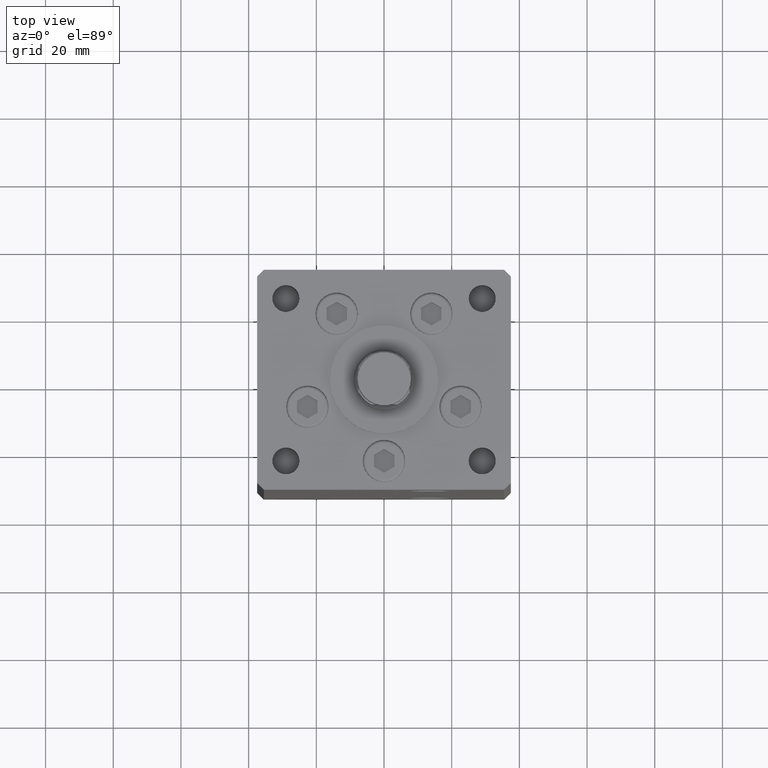
[diagram: clean part render]
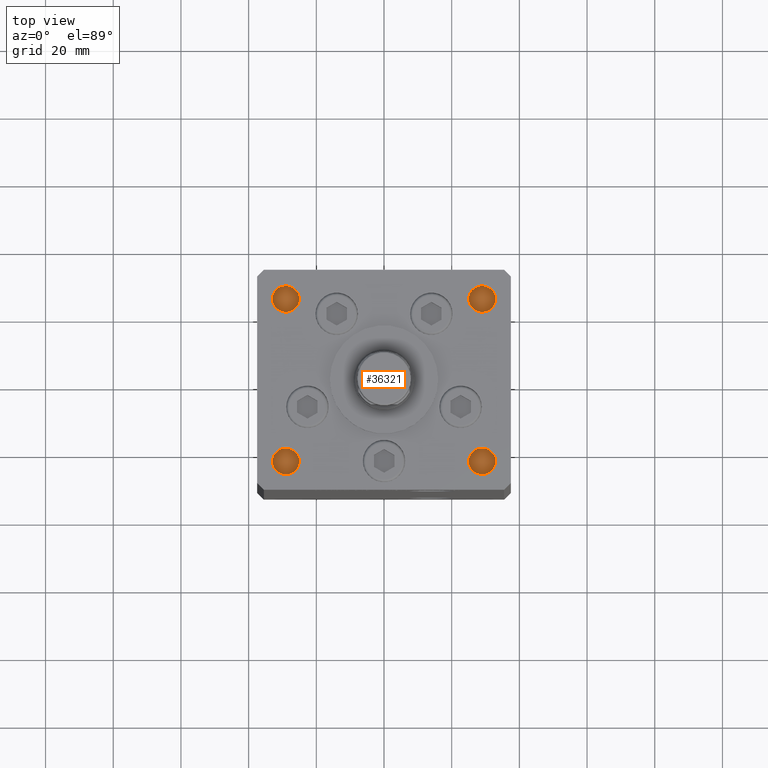
[diagram: same view with one face highlighted and labeled with its STEP entity id]
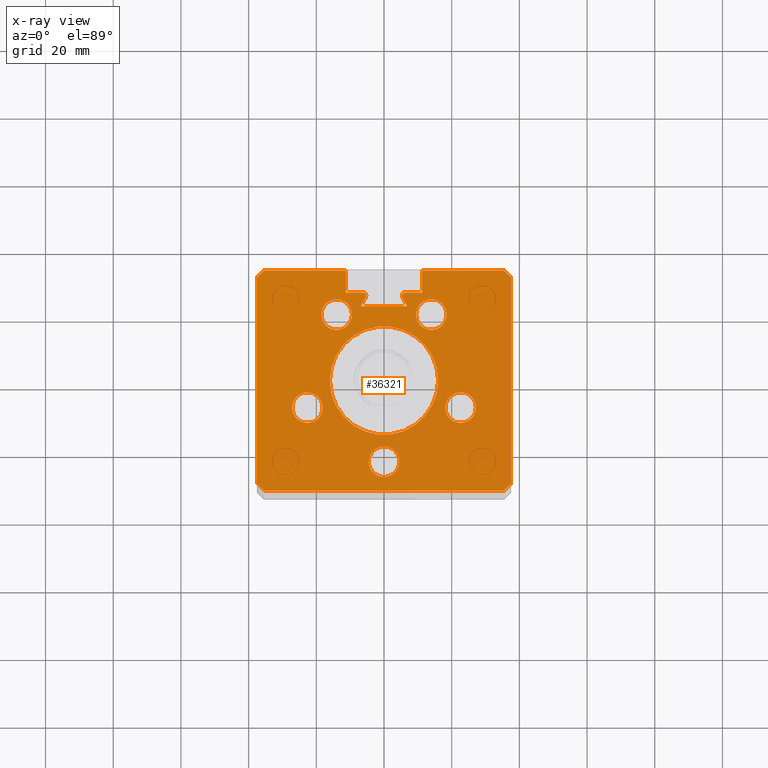
[diagram: x-ray of the same camera — body ghosted, the highlighted face saturated]
A machine part, top view. The second image highlights one B-rep face of the part: STEP entity #36321.
The next image is the same camera in x-ray: the body ghosted, the highlighted face saturated — about 0% of this face is hidden behind the body in this view.
In plain terms, the highlighted planar face has unit normal (0, 0, -1).
Its self-contained STEP definition (entity closure, byte-faithful):
#407 = CARTESIAN_POINT ( 'NONE',  ( -35.49999999999999289, -32.50000000000000000, 138.0000000000000000 ) ) ;
#684 = CIRCLE ( 'NONE', #36402, 4.499999999999997335 ) ;
#720 = CIRCLE ( 'NONE', #6662, 4.499999999999997335 ) ;
#944 = VECTOR ( 'NONE', #9635, 1000.000000000000000 ) ;
#988 = CARTESIAN_POINT ( 'NONE',  ( -37.49999999999999289, -30.50000000000000000, 138.0000000000000000 ) ) ;
#1321 = CARTESIAN_POINT ( 'NONE',  ( 0.000000000000000000, -24.00000000000000000, 138.0000000000000000 ) ) ;
#1369 = ORIENTED_EDGE ( 'NONE', *, *, #14141, .F. ) ;
#1952 = PLANE ( 'NONE',  #3357 ) ;
#1969 = DIRECTION ( 'NONE',  ( 0.000000000000000000, 0.000000000000000000, 1.000000000000000000 ) ) ;
#2273 = CARTESIAN_POINT ( 'NONE',  ( 0.000000000000000000, 25.99999999999999289, 138.0000000000000000 ) ) ;
#2589 = ORIENTED_EDGE ( 'NONE', *, *, #12013, .T. ) ;
#2596 = VERTEX_POINT ( 'NONE', #45633 ) ;
#2802 = CARTESIAN_POINT ( 'NONE',  ( -11.25000000000000178, 25.99999999999999289, 138.0000000000000000 ) ) ;
#2958 = ORIENTED_EDGE ( 'NONE', *, *, #31357, .F. ) ;
#3102 = AXIS2_PLACEMENT_3D ( 'NONE', #26254, #47601, #35047 ) ;
#3357 = AXIS2_PLACEMENT_3D ( 'NONE', #43259, #22469, #38725 ) ;
#3436 = EDGE_LOOP ( 'NONE', ( #1369, #6415 ) ) ;
#3634 = CARTESIAN_POINT ( 'NONE',  ( 0.000000000000000000, 0.000000000000000000, 138.0000000000000000 ) ) ;
#3905 = ORIENTED_EDGE ( 'NONE', *, *, #18652, .F. ) ;
#3967 = CARTESIAN_POINT ( 'NONE',  ( -27.12741699796952233, -8.000000000000000000, 138.0000000000000000 ) ) ;
#4201 = DIRECTION ( 'NONE',  ( 0.7071067811865474617, -0.7071067811865474617, 0.000000000000000000 ) ) ;
#4388 = EDGE_LOOP ( 'NONE', ( #27207, #10874 ) ) ;
#4476 = DIRECTION ( 'NONE',  ( -0.000000000000000000, 0.000000000000000000, 1.000000000000000000 ) ) ;
#4497 = CARTESIAN_POINT ( 'NONE',  ( -16.00000000000000000, 0.000000000000000000, 138.0000000000000000 ) ) ;
#4501 = AXIS2_PLACEMENT_3D ( 'NONE', #20648, #36910, #31610 ) ;
#4571 = AXIS2_PLACEMENT_3D ( 'NONE', #9257, #4476, #25774 ) ;
#4976 = VERTEX_POINT ( 'NONE', #43946 ) ;
#5035 = EDGE_CURVE ( 'NONE', #37393, #42152, #38476, .T. ) ;
#5096 = ORIENTED_EDGE ( 'NONE', *, *, #32469, .F. ) ;
#5516 = LINE ( 'NONE', #49780, #43775 ) ;
#5817 = EDGE_CURVE ( 'NONE', #19272, #7182, #38511, .T. ) ;
#6227 = CARTESIAN_POINT ( 'NONE',  ( 13.99106857963322170, 19.50000000000000000, 138.0000000000000000 ) ) ;
#6387 = DIRECTION ( 'NONE',  ( 0.000000000000000000, 0.000000000000000000, 1.000000000000000000 ) ) ;
#6412 = AXIS2_PLACEMENT_3D ( 'NONE', #6227, #1969, #42214 ) ;
#6415 = ORIENTED_EDGE ( 'NONE', *, *, #5817, .F. ) ;
#6473 = VERTEX_POINT ( 'NONE', #23224 ) ;
#6531 = DIRECTION ( 'NONE',  ( -1.000000000000000000, 0.000000000000000000, 0.000000000000000000 ) ) ;
#6662 = AXIS2_PLACEMENT_3D ( 'NONE', #47802, #28298, #36033 ) ;
#6694 = ORIENTED_EDGE ( 'NONE', *, *, #29539, .T. ) ;
#6740 = VECTOR ( 'NONE', #4201, 1000.000000000000114 ) ;
#6776 = EDGE_CURVE ( 'NONE', #35867, #50076, #31736, .T. ) ;
#7030 = CARTESIAN_POINT ( 'NONE',  ( 11.25000000000000178, 0.000000000000000000, 138.0000000000000000 ) ) ;
#7182 = VERTEX_POINT ( 'NONE', #13125 ) ;
#7400 = CARTESIAN_POINT ( 'NONE',  ( -5.375042956467946276, 24.59999999999899245, 138.0000000000000000 ) ) ;
#7402 = EDGE_CURVE ( 'NONE', #24320, #29420, #40271, .T. ) ;
#7431 = ORIENTED_EDGE ( 'NONE', *, *, #45583, .T. ) ;
#7557 = CARTESIAN_POINT ( 'NONE',  ( -6.183333333334001480, 25.06666666666599141, 138.0000000000000000 ) ) ;
#7888 = VECTOR ( 'NONE', #33146, 1000.000000000000114 ) ;
#8259 = DIRECTION ( 'NONE',  ( 1.000000000000000000, 0.000000000000000000, 0.000000000000000000 ) ) ;
#8761 = ORIENTED_EDGE ( 'NONE', *, *, #40909, .T. ) ;
#8851 = CARTESIAN_POINT ( 'NONE',  ( -11.25000000000000178, 32.49999999999999289, 138.0000000000000000 ) ) ;
#9163 = CARTESIAN_POINT ( 'NONE',  ( -35.50000000000000000, 32.49999999999999289, 138.0000000000000000 ) ) ;
#9257 = CARTESIAN_POINT ( 'NONE',  ( 0.000000000000000000, 0.000000000000000000, 138.0000000000000000 ) ) ;
#9445 = CARTESIAN_POINT ( 'NONE',  ( 6.876153656360466826, 21.99999999999986855, 138.0000000000000000 ) ) ;
#9614 = EDGE_LOOP ( 'NONE', ( #29637, #42181 ) ) ;
#9635 = DIRECTION ( 'NONE',  ( 1.000000000000000000, 0.000000000000000000, 0.000000000000000000 ) ) ;
#9664 = EDGE_CURVE ( 'NONE', #32170, #38801, #11044, .T. ) ;
#9719 = VERTEX_POINT ( 'NONE', #2802 ) ;
#9739 = VECTOR ( 'NONE', #10060, 1000.000000000000000 ) ;
#9751 = ORIENTED_EDGE ( 'NONE', *, *, #22356, .T. ) ;
#9938 = FACE_BOUND ( 'NONE', #3436, .T. ) ;
#10060 = DIRECTION ( 'NONE',  ( 0.4999999999999996114, 0.8660254037844388186, 0.000000000000000000 ) ) ;
#10736 = FACE_BOUND ( 'NONE', #37413, .T. ) ;
#10810 = CARTESIAN_POINT ( 'NONE',  ( -11.25000000000000178, 32.49999999999999289, 138.0000000000000000 ) ) ;
#10874 = ORIENTED_EDGE ( 'NONE', *, *, #16318, .F. ) ;
#10882 = VERTEX_POINT ( 'NONE', #40360 ) ;
#10968 = DIRECTION ( 'NONE',  ( 1.000000000000000000, 0.000000000000000000, 0.000000000000000000 ) ) ;
#11044 = LINE ( 'NONE', #27820, #44416 ) ;
#11393 = CARTESIAN_POINT ( 'NONE',  ( 4.500000000000000000, -24.00000000000000000, 138.0000000000000000 ) ) ;
#11604 = VECTOR ( 'NONE', #13417, 1000.000000000000000 ) ;
#11719 = VERTEX_POINT ( 'NONE', #13935 ) ;
#12013 = EDGE_CURVE ( 'NONE', #38801, #17335, #18653, .T. ) ;
#12084 = VERTEX_POINT ( 'NONE', #4497 ) ;
#12625 = LINE ( 'NONE', #17675, #11604 ) ;
#12768 = ORIENTED_EDGE ( 'NONE', *, *, #30805, .F. ) ;
#12837 = ORIENTED_EDGE ( 'NONE', *, *, #38944, .F. ) ;
#13105 = VERTEX_POINT ( 'NONE', #11393 ) ;
#13125 = CARTESIAN_POINT ( 'NONE',  ( 27.12741699796952233, -8.000000000000000000, 138.0000000000000000 ) ) ;
#13211 = VERTEX_POINT ( 'NONE', #42536 ) ;
#13417 = DIRECTION ( 'NONE',  ( -1.000000000000000000, 0.000000000000000000, 0.000000000000000000 ) ) ;
#13483 = EDGE_CURVE ( 'NONE', #24320, #52120, #29150, .T. ) ;
#13565 = DIRECTION ( 'NONE',  ( 1.000000000000000000, 0.000000000000000000, 0.000000000000000000 ) ) ;
#13615 = CARTESIAN_POINT ( 'NONE',  ( -35.50000000000000000, 32.49999999999999289, 138.0000000000000000 ) ) ;
#13935 = CARTESIAN_POINT ( 'NONE',  ( 11.24999999999999467, 32.49999999999999289, 138.0000000000000000 ) ) ;
#14093 = CARTESIAN_POINT ( 'NONE',  ( -6.876153656360466826, 21.99999999999986855, 138.0000000000000000 ) ) ;
#14141 = EDGE_CURVE ( 'NONE', #7182, #19272, #15571, .T. ) ;
#14425 = CARTESIAN_POINT ( 'NONE',  ( -37.49999999999999289, -30.50000000000000000, 138.0000000000000000 ) ) ;
#14494 = EDGE_LOOP ( 'NONE', ( #16893, #51810 ) ) ;
#14906 = ORIENTED_EDGE ( 'NONE', *, *, #13483, .T. ) ;
#15261 = EDGE_LOOP ( 'NONE', ( #7431, #33311, #25682, #14906, #22985, #8761, #20009, #2958, #50449, #5096, #21853, #16082, #6694, #3905, #23378, #2589, #9751, #46702, #12837 ) ) ;
#15282 = DIRECTION ( 'NONE',  ( -0.000000000000000000, -1.000000000000000000, 0.000000000000000000 ) ) ;
#15498 = AXIS2_PLACEMENT_3D ( 'NONE', #43679, #51697, #36452 ) ;
#15571 = CIRCLE ( 'NONE', #52192, 4.500000000000000888 ) ;
#16082 = ORIENTED_EDGE ( 'NONE', *, *, #38036, .T. ) ;
#16086 = EDGE_CURVE ( 'NONE', #12084, #10882, #24957, .T. ) ;
#16172 = ORIENTED_EDGE ( 'NONE', *, *, #16086, .F. ) ;
#16256 = EDGE_CURVE ( 'NONE', #4976, #26732, #36027, .T. ) ;
#16318 = EDGE_CURVE ( 'NONE', #46203, #13105, #51402, .T. ) ;
#16391 = DIRECTION ( 'NONE',  ( 0.000000000000000000, 0.000000000000000000, -1.000000000000000000 ) ) ;
#16893 = ORIENTED_EDGE ( 'NONE', *, *, #34562, .F. ) ;
#17057 = CARTESIAN_POINT ( 'NONE',  ( 35.50000000000000000, 32.49999999999999289, 138.0000000000000000 ) ) ;
#17335 = VERTEX_POINT ( 'NONE', #14093 ) ;
#17517 = EDGE_CURVE ( 'NONE', #17904, #33056, #5516, .T. ) ;
#17675 = CARTESIAN_POINT ( 'NONE',  ( 0.000000000000000000, 25.99999999999999289, 138.0000000000000000 ) ) ;
#17904 = VERTEX_POINT ( 'NONE', #407 ) ;
#18201 = AXIS2_PLACEMENT_3D ( 'NONE', #39989, #27459, #8259 ) ;
#18203 = FACE_BOUND ( 'NONE', #4388, .T. ) ;
#18652 = EDGE_CURVE ( 'NONE', #32170, #2596, #27636, .T. ) ;
#18653 = LINE ( 'NONE', #43973, #39360 ) ;
#18894 = DIRECTION ( 'NONE',  ( -0.7071067811865474617, -0.7071067811865474617, 0.000000000000000000 ) ) ;
#19233 = CARTESIAN_POINT ( 'NONE',  ( -11.25000000000000178, 32.49999999999999289, 138.0000000000000000 ) ) ;
#19272 = VERTEX_POINT ( 'NONE', #26989 ) ;
#20009 = ORIENTED_EDGE ( 'NONE', *, *, #17517, .T. ) ;
#20014 = CIRCLE ( 'NONE', #6412, 4.500000000000003553 ) ;
#20233 = VECTOR ( 'NONE', #37859, 1000.000000000000114 ) ;
#20535 = LINE ( 'NONE', #48822, #20954 ) ;
#20648 = CARTESIAN_POINT ( 'NONE',  ( 13.99106857963322170, 19.50000000000000000, 138.0000000000000000 ) ) ;
#20884 = LINE ( 'NONE', #44363, #49746 ) ;
#20954 = VECTOR ( 'NONE', #44553, 1000.000000000000000 ) ;
#21095 = EDGE_CURVE ( 'NONE', #50076, #35867, #20014, .T. ) ;
#21531 = LINE ( 'NONE', #25792, #9739 ) ;
#21853 = ORIENTED_EDGE ( 'NONE', *, *, #43498, .F. ) ;
#22281 = VECTOR ( 'NONE', #6531, 1000.000000000000000 ) ;
#22356 = EDGE_CURVE ( 'NONE', #17335, #26732, #21531, .T. ) ;
#22469 = DIRECTION ( 'NONE',  ( 0.000000000000000000, 0.000000000000000000, -1.000000000000000000 ) ) ;
#22816 = EDGE_CURVE ( 'NONE', #45408, #31684, #20884, .T. ) ;
#22924 = DIRECTION ( 'NONE',  ( -1.000000000000000000, 0.000000000000000000, 0.000000000000000000 ) ) ;
#22985 = ORIENTED_EDGE ( 'NONE', *, *, #37008, .T. ) ;
#23224 = CARTESIAN_POINT ( 'NONE',  ( 11.25000000000000178, 25.99999999999999289, 138.0000000000000000 ) ) ;
#23329 = CARTESIAN_POINT ( 'NONE',  ( -37.50000000000000711, 30.50000000000000000, 138.0000000000000000 ) ) ;
#23378 = ORIENTED_EDGE ( 'NONE', *, *, #9664, .T. ) ;
#23553 = DIRECTION ( 'NONE',  ( 1.000000000000000000, 0.000000000000000000, 0.000000000000000000 ) ) ;
#24131 = AXIS2_PLACEMENT_3D ( 'NONE', #43990, #39729, #31464 ) ;
#24141 = CARTESIAN_POINT ( 'NONE',  ( 6.183333333334001480, 25.06666666666599141, 138.0000000000000000 ) ) ;
#24320 = VERTEX_POINT ( 'NONE', #13615 ) ;
#24638 = CIRCLE ( 'NONE', #46693, 4.500000000000000000 ) ;
#24709 = DIRECTION ( 'NONE',  ( 1.000000000000000000, 0.000000000000000000, 0.000000000000000000 ) ) ;
#24957 = CIRCLE ( 'NONE', #4571, 16.00000000000000000 ) ;
#25632 = CARTESIAN_POINT ( 'NONE',  ( -37.50000000000000711, 30.50000000000000000, 138.0000000000000000 ) ) ;
#25682 = ORIENTED_EDGE ( 'NONE', *, *, #7402, .F. ) ;
#25774 = DIRECTION ( 'NONE',  ( 1.000000000000000000, 0.000000000000000000, 0.000000000000000000 ) ) ;
#25792 = CARTESIAN_POINT ( 'NONE',  ( -14.68339468389911495, 8.477461873366666012, 138.0000000000000000 ) ) ;
#26057 = CIRCLE ( 'NONE', #3102, 4.500000000000000888 ) ;
#26188 = FACE_BOUND ( 'NONE', #28222, .T. ) ;
#26254 = CARTESIAN_POINT ( 'NONE',  ( -22.62741699796951877, -8.000000000000000000, 138.0000000000000000 ) ) ;
#26665 = VERTEX_POINT ( 'NONE', #52185 ) ;
#26732 = VERTEX_POINT ( 'NONE', #7400 ) ;
#26954 = CARTESIAN_POINT ( 'NONE',  ( 22.62741699796951877, -8.000000000000000000, 138.0000000000000000 ) ) ;
#26989 = CARTESIAN_POINT ( 'NONE',  ( 18.12741699796951877, -8.000000000000000000, 138.0000000000000000 ) ) ;
#27207 = ORIENTED_EDGE ( 'NONE', *, *, #38244, .F. ) ;
#27252 = DIRECTION ( 'NONE',  ( 0.000000000000000000, 0.000000000000000000, 1.000000000000000000 ) ) ;
#27459 = DIRECTION ( 'NONE',  ( 0.000000000000000000, 0.000000000000000000, -1.000000000000000000 ) ) ;
#27585 = EDGE_CURVE ( 'NONE', #9719, #29420, #20535, .T. ) ;
#27626 = CARTESIAN_POINT ( 'NONE',  ( 37.49999999999999289, -30.50000000000000000, 138.0000000000000000 ) ) ;
#27636 = CIRCLE ( 'NONE', #33554, 0.9333333333340008142 ) ;
#27820 = CARTESIAN_POINT ( 'NONE',  ( 14.68339468389911850, 8.477461873366667788, 138.0000000000000000 ) ) ;
#27880 = CARTESIAN_POINT ( 'NONE',  ( 37.50000000000000711, 30.50000000000000000, 138.0000000000000000 ) ) ;
#28124 = DIRECTION ( 'NONE',  ( 1.000000000000000000, 0.000000000000000000, 0.000000000000000000 ) ) ;
#28149 = CARTESIAN_POINT ( 'NONE',  ( 35.49999999999999289, -32.50000000000000000, 138.0000000000000000 ) ) ;
#28222 = EDGE_LOOP ( 'NONE', ( #16172, #12768 ) ) ;
#28274 = CARTESIAN_POINT ( 'NONE',  ( 5.375042956467948052, 24.59999999999899245, 138.0000000000000000 ) ) ;
#28292 = EDGE_CURVE ( 'NONE', #42152, #37393, #26057, .T. ) ;
#28298 = DIRECTION ( 'NONE',  ( 0.000000000000000000, 0.000000000000000000, 1.000000000000000000 ) ) ;
#28716 = VECTOR ( 'NONE', #18894, 1000.000000000000114 ) ;
#29150 = LINE ( 'NONE', #9163, #7888 ) ;
#29420 = VERTEX_POINT ( 'NONE', #10810 ) ;
#29539 = EDGE_CURVE ( 'NONE', #6473, #2596, #12625, .T. ) ;
#29637 = ORIENTED_EDGE ( 'NONE', *, *, #21095, .F. ) ;
#30453 = FACE_OUTER_BOUND ( 'NONE', #15261, .T. ) ;
#30576 = CARTESIAN_POINT ( 'NONE',  ( 9.491068579633218150, 19.50000000000000000, 138.0000000000000000 ) ) ;
#30805 = EDGE_CURVE ( 'NONE', #10882, #12084, #32932, .T. ) ;
#31213 = DIRECTION ( 'NONE',  ( 1.000000000000000000, 0.000000000000000000, 0.000000000000000000 ) ) ;
#31357 = EDGE_CURVE ( 'NONE', #31684, #33056, #40206, .T. ) ;
#31464 = DIRECTION ( 'NONE',  ( 1.000000000000000000, 0.000000000000000000, 0.000000000000000000 ) ) ;
#31610 = DIRECTION ( 'NONE',  ( 1.000000000000000000, 0.000000000000000000, 0.000000000000000000 ) ) ;
#31684 = VERTEX_POINT ( 'NONE', #27626 ) ;
#31736 = CIRCLE ( 'NONE', #4501, 4.500000000000003553 ) ;
#32170 = VERTEX_POINT ( 'NONE', #28274 ) ;
#32469 = EDGE_CURVE ( 'NONE', #13211, #45408, #45864, .T. ) ;
#32932 = CIRCLE ( 'NONE', #47439, 16.00000000000000000 ) ;
#33056 = VERTEX_POINT ( 'NONE', #28149 ) ;
#33146 = DIRECTION ( 'NONE',  ( -0.7071067811865500152, -0.7071067811865451302, 0.000000000000000000 ) ) ;
#33311 = ORIENTED_EDGE ( 'NONE', *, *, #27585, .T. ) ;
#33554 = AXIS2_PLACEMENT_3D ( 'NONE', #24141, #16391, #51894 ) ;
#33670 = EDGE_CURVE ( 'NONE', #38145, #42248, #684, .T. ) ;
#33819 = DIRECTION ( 'NONE',  ( 0.000000000000000000, 0.000000000000000000, 1.000000000000000000 ) ) ;
#34562 = EDGE_CURVE ( 'NONE', #42248, #38145, #720, .T. ) ;
#34622 = DIRECTION ( 'NONE',  ( 1.000000000000000000, 0.000000000000000000, 0.000000000000000000 ) ) ;
#34925 = CARTESIAN_POINT ( 'NONE',  ( -4.500000000000000000, -24.00000000000000000, 138.0000000000000000 ) ) ;
#35031 = LINE ( 'NONE', #2273, #22281 ) ;
#35047 = DIRECTION ( 'NONE',  ( 1.000000000000000000, 0.000000000000000000, 0.000000000000000000 ) ) ;
#35753 = ORIENTED_EDGE ( 'NONE', *, *, #28292, .F. ) ;
#35867 = VERTEX_POINT ( 'NONE', #30576 ) ;
#36027 = CIRCLE ( 'NONE', #18201, 0.9333333333340008142 ) ;
#36033 = DIRECTION ( 'NONE',  ( 1.000000000000000000, 0.000000000000000000, 0.000000000000000000 ) ) ;
#36321 = ADVANCED_FACE ( 'NONE', ( #10736, #18203, #9938, #50997, #39242, #30453, #26188 ), #1952, .F. ) ;
#36402 = AXIS2_PLACEMENT_3D ( 'NONE', #43781, #27252, #52305 ) ;
#36452 = DIRECTION ( 'NONE',  ( 1.000000000000000000, 0.000000000000000000, 0.000000000000000000 ) ) ;
#36910 = DIRECTION ( 'NONE',  ( 0.000000000000000000, 0.000000000000000000, 1.000000000000000000 ) ) ;
#37008 = EDGE_CURVE ( 'NONE', #52120, #47988, #51067, .T. ) ;
#37393 = VERTEX_POINT ( 'NONE', #45346 ) ;
#37413 = EDGE_LOOP ( 'NONE', ( #47204, #35753 ) ) ;
#37669 = AXIS2_PLACEMENT_3D ( 'NONE', #42896, #6387, #34622 ) ;
#37859 = DIRECTION ( 'NONE',  ( 0.7071067811865500152, -0.7071067811865451302, 0.000000000000000000 ) ) ;
#38036 = EDGE_CURVE ( 'NONE', #11719, #6473, #39805, .T. ) ;
#38145 = VERTEX_POINT ( 'NONE', #51030 ) ;
#38153 = LINE ( 'NONE', #8851, #944 ) ;
#38244 = EDGE_CURVE ( 'NONE', #13105, #46203, #24638, .T. ) ;
#38476 = CIRCLE ( 'NONE', #15498, 4.500000000000000888 ) ;
#38511 = CIRCLE ( 'NONE', #37669, 4.500000000000000888 ) ;
#38725 = DIRECTION ( 'NONE',  ( -1.000000000000000000, 0.000000000000000000, -0.000000000000000000 ) ) ;
#38801 = VERTEX_POINT ( 'NONE', #9445 ) ;
#38944 = EDGE_CURVE ( 'NONE', #26665, #4976, #52659, .T. ) ;
#39040 = AXIS2_PLACEMENT_3D ( 'NONE', #7557, #43552, #23553 ) ;
#39200 = DIRECTION ( 'NONE',  ( 0.000000000000000000, 0.000000000000000000, 1.000000000000000000 ) ) ;
#39242 = FACE_BOUND ( 'NONE', #14494, .T. ) ;
#39360 = VECTOR ( 'NONE', #22924, 1000.000000000000000 ) ;
#39583 = DIRECTION ( 'NONE',  ( 2.275047181608927644E-16, -1.000000000000000000, 0.000000000000000000 ) ) ;
#39729 = DIRECTION ( 'NONE',  ( 0.000000000000000000, 0.000000000000000000, 1.000000000000000000 ) ) ;
#39805 = LINE ( 'NONE', #7030, #51079 ) ;
#39989 = CARTESIAN_POINT ( 'NONE',  ( -6.183333333334001480, 25.06666666666599141, 138.0000000000000000 ) ) ;
#40206 = LINE ( 'NONE', #51443, #28716 ) ;
#40271 = LINE ( 'NONE', #19233, #52196 ) ;
#40360 = CARTESIAN_POINT ( 'NONE',  ( 16.00000000000000000, 1.959434878635765131E-15, 138.0000000000000000 ) ) ;
#40707 = LINE ( 'NONE', #988, #6740 ) ;
#40909 = EDGE_CURVE ( 'NONE', #47988, #17904, #40707, .T. ) ;
#41894 = CARTESIAN_POINT ( 'NONE',  ( 18.49106857963322526, 19.50000000000000000, 138.0000000000000000 ) ) ;
#42152 = VERTEX_POINT ( 'NONE', #3967 ) ;
#42181 = ORIENTED_EDGE ( 'NONE', *, *, #6776, .F. ) ;
#42214 = DIRECTION ( 'NONE',  ( 1.000000000000000000, 0.000000000000000000, 0.000000000000000000 ) ) ;
#42248 = VERTEX_POINT ( 'NONE', #50786 ) ;
#42536 = CARTESIAN_POINT ( 'NONE',  ( 35.50000000000000000, 32.49999999999999289, 138.0000000000000000 ) ) ;
#42896 = CARTESIAN_POINT ( 'NONE',  ( 22.62741699796951877, -8.000000000000000000, 138.0000000000000000 ) ) ;
#43259 = CARTESIAN_POINT ( 'NONE',  ( 0.000000000000000000, 0.000000000000000000, 138.0000000000000000 ) ) ;
#43498 = EDGE_CURVE ( 'NONE', #11719, #13211, #38153, .T. ) ;
#43552 = DIRECTION ( 'NONE',  ( 0.000000000000000000, 0.000000000000000000, -1.000000000000000000 ) ) ;
#43679 = CARTESIAN_POINT ( 'NONE',  ( -22.62741699796951877, -8.000000000000000000, 138.0000000000000000 ) ) ;
#43775 = VECTOR ( 'NONE', #24709, 1000.000000000000000 ) ;
#43781 = CARTESIAN_POINT ( 'NONE',  ( -13.99106857963322170, 19.50000000000000000, 138.0000000000000000 ) ) ;
#43946 = CARTESIAN_POINT ( 'NONE',  ( -5.250000000000000000, 25.06666666666599141, 138.0000000000000000 ) ) ;
#43973 = CARTESIAN_POINT ( 'NONE',  ( 0.000000000000000000, 21.99999999999986855, 138.0000000000000000 ) ) ;
#43990 = CARTESIAN_POINT ( 'NONE',  ( 0.000000000000000000, -24.00000000000000000, 138.0000000000000000 ) ) ;
#44363 = CARTESIAN_POINT ( 'NONE',  ( 37.50000000000000711, 30.50000000000000000, 138.0000000000000000 ) ) ;
#44416 = VECTOR ( 'NONE', #51843, 1000.000000000000114 ) ;
#44553 = DIRECTION ( 'NONE',  ( 0.000000000000000000, 1.000000000000000000, 0.000000000000000000 ) ) ;
#44888 = DIRECTION ( 'NONE',  ( -2.275047181608927644E-16, -1.000000000000000000, 0.000000000000000000 ) ) ;
#45346 = CARTESIAN_POINT ( 'NONE',  ( -18.12741699796951877, -8.000000000000000000, 138.0000000000000000 ) ) ;
#45408 = VERTEX_POINT ( 'NONE', #27880 ) ;
#45583 = EDGE_CURVE ( 'NONE', #26665, #9719, #35031, .T. ) ;
#45633 = CARTESIAN_POINT ( 'NONE',  ( 6.183333333334001480, 25.99999999999999289, 138.0000000000000000 ) ) ;
#45864 = LINE ( 'NONE', #17057, #20233 ) ;
#45891 = VECTOR ( 'NONE', #39583, 1000.000000000000000 ) ;
#46203 = VERTEX_POINT ( 'NONE', #34925 ) ;
#46693 = AXIS2_PLACEMENT_3D ( 'NONE', #1321, #33819, #13565 ) ;
#46702 = ORIENTED_EDGE ( 'NONE', *, *, #16256, .F. ) ;
#47204 = ORIENTED_EDGE ( 'NONE', *, *, #5035, .F. ) ;
#47439 = AXIS2_PLACEMENT_3D ( 'NONE', #3634, #52664, #28124 ) ;
#47601 = DIRECTION ( 'NONE',  ( 0.000000000000000000, 0.000000000000000000, 1.000000000000000000 ) ) ;
#47802 = CARTESIAN_POINT ( 'NONE',  ( -13.99106857963322170, 19.50000000000000000, 138.0000000000000000 ) ) ;
#47988 = VERTEX_POINT ( 'NONE', #14425 ) ;
#48822 = CARTESIAN_POINT ( 'NONE',  ( -11.25000000000000178, 0.000000000000000000, 138.0000000000000000 ) ) ;
#49746 = VECTOR ( 'NONE', #44888, 1000.000000000000000 ) ;
#49780 = CARTESIAN_POINT ( 'NONE',  ( -35.49999999999999289, -32.50000000000000000, 138.0000000000000000 ) ) ;
#50076 = VERTEX_POINT ( 'NONE', #41894 ) ;
#50449 = ORIENTED_EDGE ( 'NONE', *, *, #22816, .F. ) ;
#50786 = CARTESIAN_POINT ( 'NONE',  ( -9.491068579633225255, 19.50000000000000000, 138.0000000000000000 ) ) ;
#50997 = FACE_BOUND ( 'NONE', #9614, .T. ) ;
#51030 = CARTESIAN_POINT ( 'NONE',  ( -18.49106857963321815, 19.50000000000000000, 138.0000000000000000 ) ) ;
#51067 = LINE ( 'NONE', #23329, #45891 ) ;
#51079 = VECTOR ( 'NONE', #15282, 1000.000000000000000 ) ;
#51402 = CIRCLE ( 'NONE', #24131, 4.500000000000000000 ) ;
#51443 = CARTESIAN_POINT ( 'NONE',  ( 37.49999999999999289, -30.50000000000000000, 138.0000000000000000 ) ) ;
#51697 = DIRECTION ( 'NONE',  ( 0.000000000000000000, 0.000000000000000000, 1.000000000000000000 ) ) ;
#51810 = ORIENTED_EDGE ( 'NONE', *, *, #33670, .F. ) ;
#51843 = DIRECTION ( 'NONE',  ( 0.4999999999999996114, -0.8660254037844388186, 0.000000000000000000 ) ) ;
#51894 = DIRECTION ( 'NONE',  ( 1.000000000000000000, 0.000000000000000000, 0.000000000000000000 ) ) ;
#52120 = VERTEX_POINT ( 'NONE', #25632 ) ;
#52185 = CARTESIAN_POINT ( 'NONE',  ( -6.183333333334001480, 25.99999999999999289, 138.0000000000000000 ) ) ;
#52192 = AXIS2_PLACEMENT_3D ( 'NONE', #26954, #39200, #31213 ) ;
#52196 = VECTOR ( 'NONE', #10968, 1000.000000000000000 ) ;
#52305 = DIRECTION ( 'NONE',  ( 1.000000000000000000, 0.000000000000000000, 0.000000000000000000 ) ) ;
#52659 = CIRCLE ( 'NONE', #39040, 0.9333333333340008142 ) ;
#52664 = DIRECTION ( 'NONE',  ( -0.000000000000000000, 0.000000000000000000, 1.000000000000000000 ) ) ;